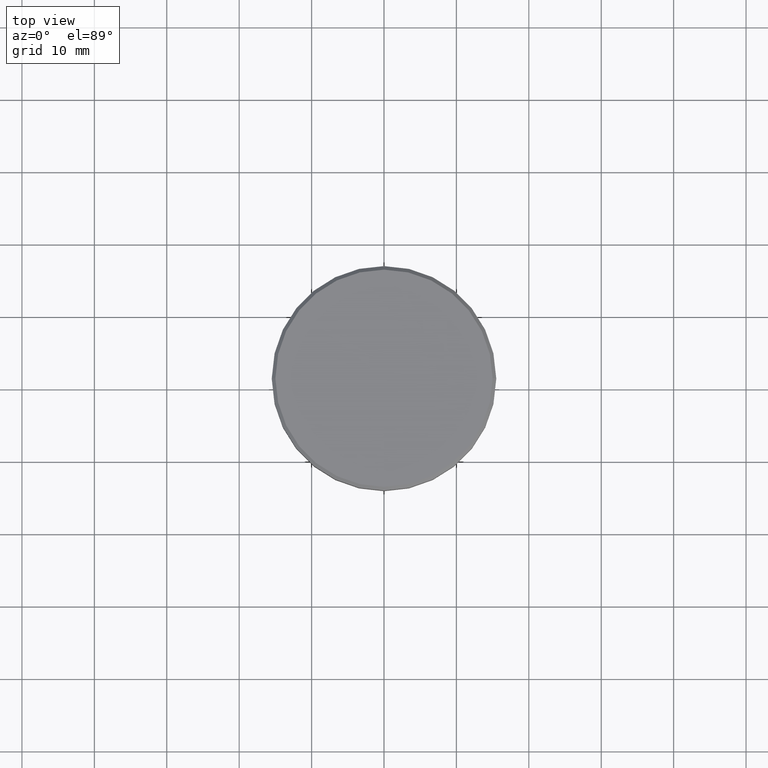
[diagram: clean part render]
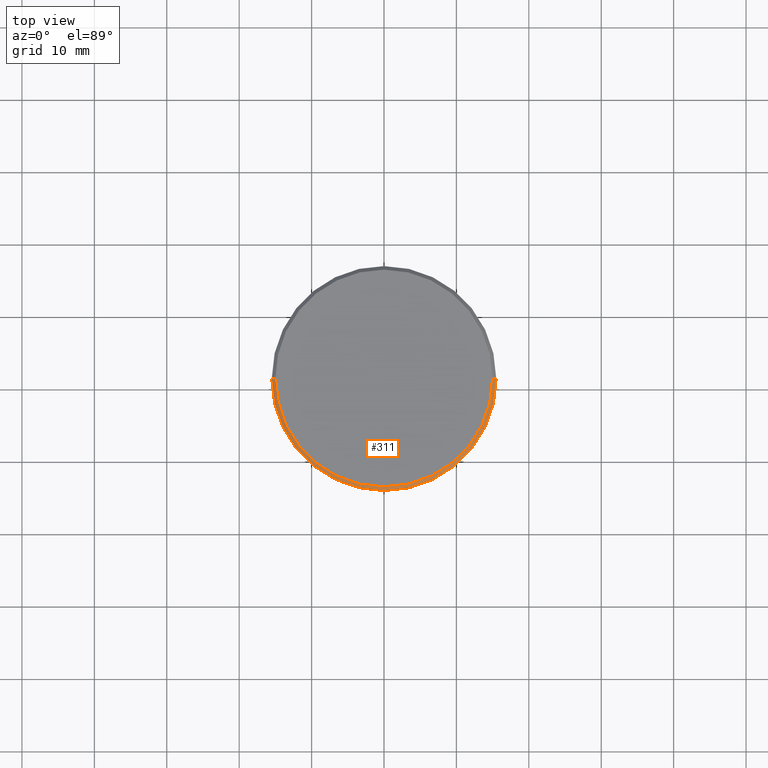
[diagram: same view with one face highlighted and labeled with its STEP entity id]
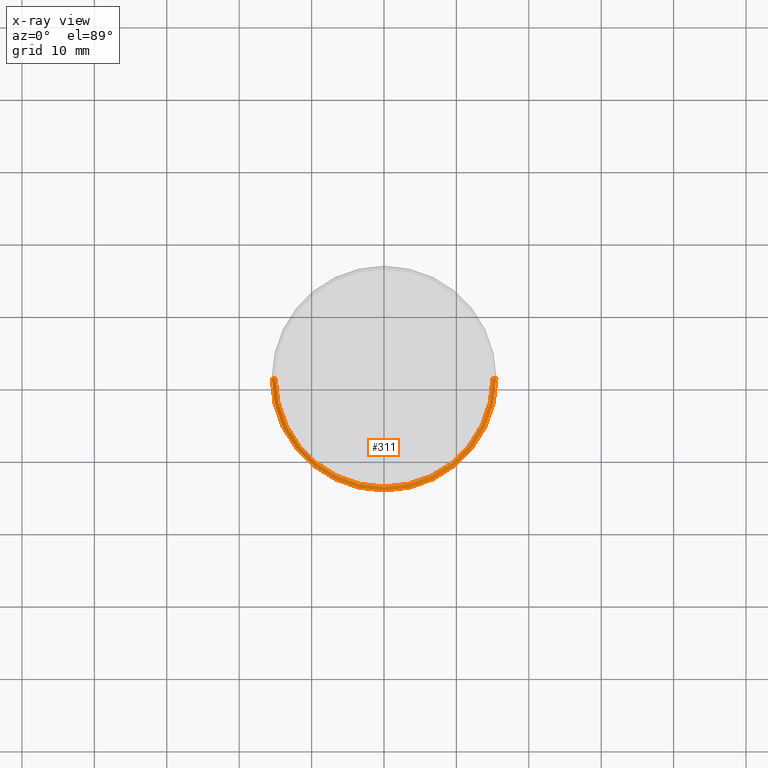
[diagram: x-ray of the same camera — body ghosted, the highlighted face saturated]
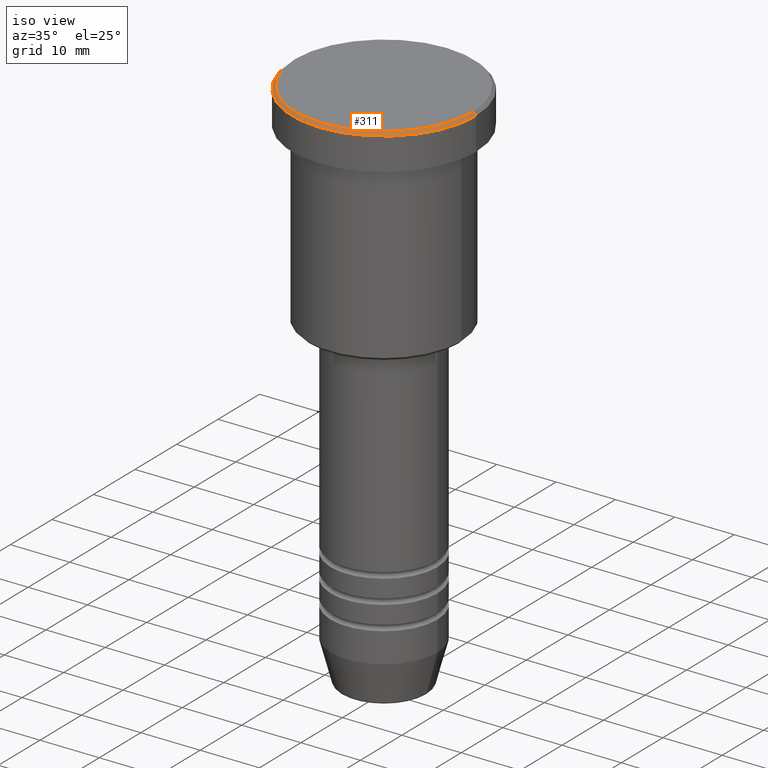
[diagram: same view with one face highlighted and labeled with its STEP entity id]
A machine part, top view. The second image highlights one B-rep face of the part: STEP entity #311.
The next image is the same camera in x-ray: the body ghosted, the highlighted face saturated — about 0% of this face is hidden behind the body in this view.
A second angle (iso view) of the same face is appended — the face is thin or edge-on in the first view.
In plain terms, the highlighted conical surface has half-angle 45 deg.
Its self-contained STEP definition (entity closure, byte-faithful):
#72 = EDGE_CURVE ( 'NONE', #734, #324, #608, .T. ) ;
#121 = CARTESIAN_POINT ( 'NONE',  ( 0.000000000000000000, 0.000000000000000000, 0.000000000000000000 ) ) ;
#185 = EDGE_CURVE ( 'NONE', #961, #324, #797, .T. ) ;
#221 = DIRECTION ( 'NONE',  ( -1.000000000000000000, 0.000000000000000000, 0.000000000000000000 ) ) ;
#230 = VERTEX_POINT ( 'NONE', #268 ) ;
#266 = LINE ( 'NONE', #825, #800 ) ;
#268 = CARTESIAN_POINT ( 'NONE',  ( 15.00000000000000000, 1.867586368699713376E-15, 0.000000000000000000 ) ) ;
#311 = ADVANCED_FACE ( 'NONE', ( #841 ), #976, .T. ) ;
#324 = VERTEX_POINT ( 'NONE', #675 ) ;
#349 = AXIS2_PLACEMENT_3D ( 'NONE', #770, #762, #820 ) ;
#428 = DIRECTION ( 'NONE',  ( -0.7071067811865487940, 0.000000000000000000, -0.7071067811865463515 ) ) ;
#448 = DIRECTION ( 'NONE',  ( 1.000000000000000000, 0.000000000000000000, 0.000000000000000000 ) ) ;
#452 = CARTESIAN_POINT ( 'NONE',  ( 0.000000000000000000, 0.000000000000000000, -0.4999999999999987232 ) ) ;
#532 = ORIENTED_EDGE ( 'NONE', *, *, #185, .F. ) ;
#579 = CIRCLE ( 'NONE', #349, 15.00000000000000000 ) ;
#608 = LINE ( 'NONE', #1063, #953 ) ;
#621 = EDGE_CURVE ( 'NONE', #734, #230, #579, .T. ) ;
#647 = ORIENTED_EDGE ( 'NONE', *, *, #1111, .F. ) ;
#675 = CARTESIAN_POINT ( 'NONE',  ( -15.50000000000000000, 1.898202538678397557E-15, -0.4999999999999987232 ) ) ;
#693 = CARTESIAN_POINT ( 'NONE',  ( 15.50000000000000000, 0.000000000000000000, -0.4999999999999987232 ) ) ;
#734 = VERTEX_POINT ( 'NONE', #1020 ) ;
#762 = DIRECTION ( 'NONE',  ( -0.000000000000000000, -0.000000000000000000, 1.000000000000000000 ) ) ;
#770 = CARTESIAN_POINT ( 'NONE',  ( 0.000000000000000000, 0.000000000000000000, 0.000000000000000000 ) ) ;
#797 = CIRCLE ( 'NONE', #1070, 15.50000000000000000 ) ;
#800 = VECTOR ( 'NONE', #1018, 1000.000000000000000 ) ;
#811 = ORIENTED_EDGE ( 'NONE', *, *, #621, .F. ) ;
#820 = DIRECTION ( 'NONE',  ( 1.000000000000000000, 0.000000000000000000, 0.000000000000000000 ) ) ;
#825 = CARTESIAN_POINT ( 'NONE',  ( 15.00000000000000000, 1.836970198721029589E-15, 0.000000000000000000 ) ) ;
#841 = FACE_OUTER_BOUND ( 'NONE', #1055, .T. ) ;
#878 = AXIS2_PLACEMENT_3D ( 'NONE', #121, #946, #221 ) ;
#946 = DIRECTION ( 'NONE',  ( 0.000000000000000000, 0.000000000000000000, -1.000000000000000000 ) ) ;
#953 = VECTOR ( 'NONE', #428, 1000.000000000000000 ) ;
#961 = VERTEX_POINT ( 'NONE', #693 ) ;
#976 = CONICAL_SURFACE ( 'NONE', #878, 15.00000000000000000, 0.7853981633974500554 ) ;
#1018 = DIRECTION ( 'NONE',  ( 0.7071067811865487940, 8.659560562354950115E-17, -0.7071067811865463515 ) ) ;
#1020 = CARTESIAN_POINT ( 'NONE',  ( -15.00000000000000000, 0.000000000000000000, 0.000000000000000000 ) ) ;
#1049 = ORIENTED_EDGE ( 'NONE', *, *, #72, .T. ) ;
#1055 = EDGE_LOOP ( 'NONE', ( #647, #811, #1049, #532 ) ) ;
#1063 = CARTESIAN_POINT ( 'NONE',  ( -15.00000000000000000, 0.000000000000000000, 0.000000000000000000 ) ) ;
#1070 = AXIS2_PLACEMENT_3D ( 'NONE', #452, #1100, #448 ) ;
#1100 = DIRECTION ( 'NONE',  ( 0.000000000000000000, 0.000000000000000000, -1.000000000000000000 ) ) ;
#1111 = EDGE_CURVE ( 'NONE', #230, #961, #266, .T. ) ;